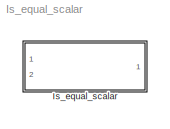
MODEL Is_equal_scalar
KIND library
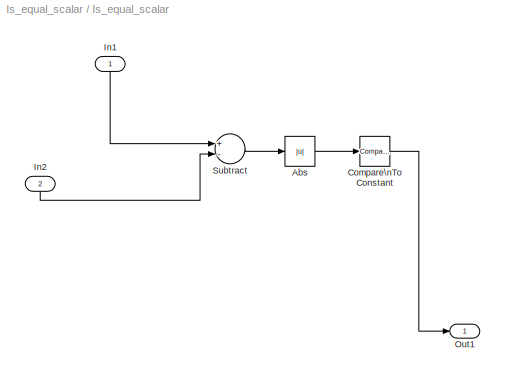
BLOCK [SubSystem] Is_equal_scalar
  FunctionWithSeparateData = off
  MaskHideContents = off
  MinAlgLoopOccurrences = off
  Opaque = off
  Ports = [2, 1]
  PropExecContextOutsideSubsystem = off
  RTWSystemCode = Auto
  RequestExecContextInheritance = off
  SID = 6
  TreatAsAtomicUnit = on
BLOCK [Abs] Is_equal_scalar/Abs
  SID = 13
  SaturateOnIntegerOverflow = off
BLOCK [Reference] Is_equal_scalar/Compare\nTo Constant  REF=simulink/Logic and Bit\nOperations/Compare\nTo Constant
  OutDataTypeStr = boolean
  Ports = [1, 1]
  SID = 14
  SourceBlock = simulink/Logic and Bit\nOperations/Compare\nTo Constant
  SourceType = Compare To Constant
  ZeroCross = on
  const = 1e-6
  relop = <
BLOCK [Inport] Is_equal_scalar/In1
  IconDisplay = Port number
  SID = 7
BLOCK [Inport] Is_equal_scalar/In2
  IconDisplay = Port number
  Port = 2
  SID = 8
BLOCK [Outport] Is_equal_scalar/Out1
  IconDisplay = Port number
  SID = 9
BLOCK [Sum] Is_equal_scalar/Subtract
  InputSameDT = off
  Inputs = +-
  OutDataTypeStr = Inherit: Inherit via internal rule
  Ports = [2, 1]
  SID = 12
  SaturateOnIntegerOverflow = off
LINE Is_equal_scalar/Abs:1 -> Is_equal_scalar/Compare\nTo Constant:1
LINE Is_equal_scalar/Compare\nTo Constant:1 -> Is_equal_scalar/Out1:1
LINE Is_equal_scalar/In1:1 -> Is_equal_scalar/Subtract:1
LINE Is_equal_scalar/In2:1 -> Is_equal_scalar/Subtract:2
LINE Is_equal_scalar/Subtract:1 -> Is_equal_scalar/Abs:1
